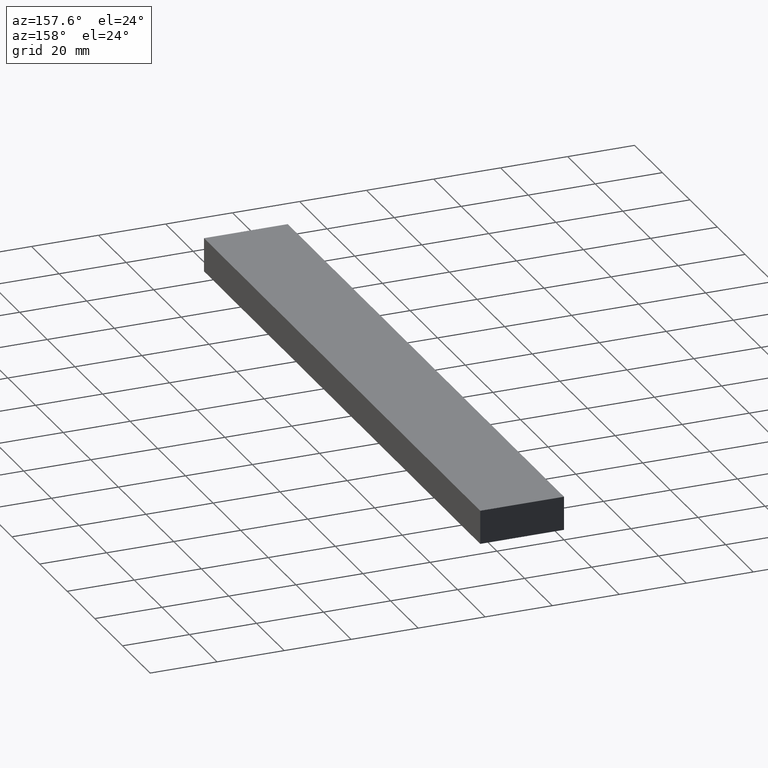
[diagram: clean part render]
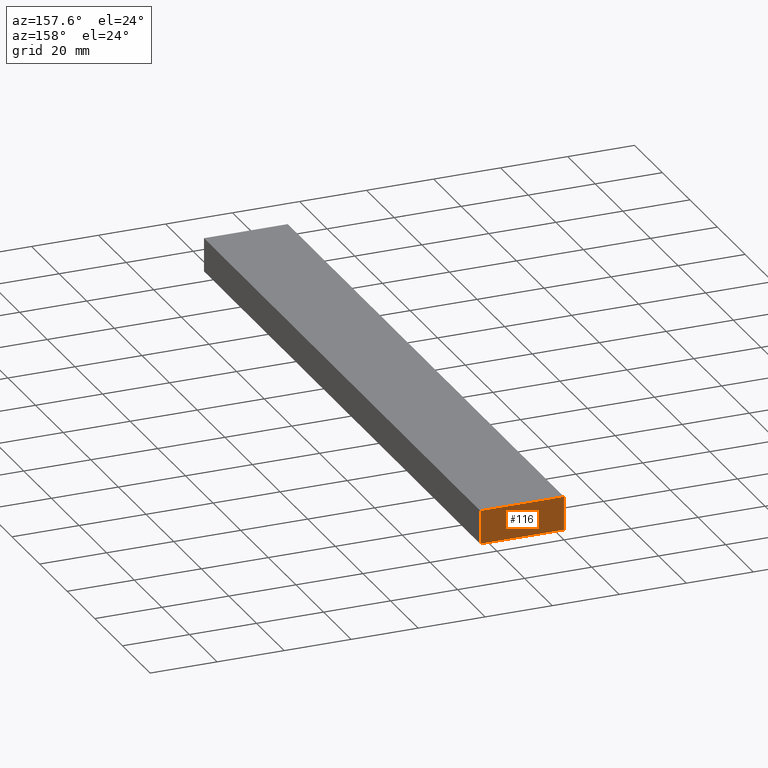
[diagram: same view with one face highlighted and labeled with its STEP entity id]
A machine part, auxiliary view. The second image highlights one B-rep face of the part: STEP entity #116.
In plain terms, the highlighted planar face has unit normal (0, 1, 0).
Its self-contained STEP definition (entity closure, byte-faithful):
#8 = CARTESIAN_POINT ( 'NONE',  ( 0.0000000000000000000, 200.0000000000000000, 0.0000000000000000000 ) ) ;
#9 = EDGE_CURVE ( 'NONE', #238, #62, #41, .T. ) ;
#14 = PLANE ( 'NONE',  #219 ) ;
#16 = EDGE_CURVE ( 'NONE', #167, #98, #101, .T. ) ;
#17 = LINE ( 'NONE', #99, #25 ) ;
#24 = EDGE_LOOP ( 'NONE', ( #231, #80, #118, #150 ) ) ;
#25 = VECTOR ( 'NONE', #189, 1000.000000000000000 ) ;
#29 = DIRECTION ( 'NONE',  ( 1.000000000000000000, 0.0000000000000000000, 0.0000000000000000000 ) ) ;
#41 = LINE ( 'NONE', #188, #209 ) ;
#62 = VERTEX_POINT ( 'NONE', #146 ) ;
#71 = EDGE_CURVE ( 'NONE', #62, #167, #122, .T. ) ;
#74 = DIRECTION ( 'NONE',  ( 0.0000000000000000000, 0.0000000000000000000, -1.000000000000000000 ) ) ;
#80 = ORIENTED_EDGE ( 'NONE', *, *, #16, .T. ) ;
#81 = CARTESIAN_POINT ( 'NONE',  ( 25.00000000000000000, 200.0000000000000000, 10.00000000000000000 ) ) ;
#96 = VECTOR ( 'NONE', #74, 1000.000000000000000 ) ;
#98 = VERTEX_POINT ( 'NONE', #187 ) ;
#99 = CARTESIAN_POINT ( 'NONE',  ( 25.00000000000000000, 200.0000000000000000, 0.0000000000000000000 ) ) ;
#101 = LINE ( 'NONE', #192, #96 ) ;
#116 = ADVANCED_FACE ( 'NONE', ( #164 ), #14, .T. ) ;
#118 = ORIENTED_EDGE ( 'NONE', *, *, #225, .T. ) ;
#122 = LINE ( 'NONE', #206, #163 ) ;
#129 = DIRECTION ( 'NONE',  ( -0.0000000000000000000, 1.000000000000000000, 0.0000000000000000000 ) ) ;
#131 = CARTESIAN_POINT ( 'NONE',  ( 0.0000000000000000000, 200.0000000000000000, 0.0000000000000000000 ) ) ;
#134 = DIRECTION ( 'NONE',  ( 0.0000000000000000000, 0.0000000000000000000, 1.000000000000000000 ) ) ;
#146 = CARTESIAN_POINT ( 'NONE',  ( 0.0000000000000000000, 200.0000000000000000, 10.00000000000000000 ) ) ;
#150 = ORIENTED_EDGE ( 'NONE', *, *, #9, .T. ) ;
#163 = VECTOR ( 'NONE', #29, 1000.000000000000000 ) ;
#164 = FACE_OUTER_BOUND ( 'NONE', #24, .T. ) ;
#167 = VERTEX_POINT ( 'NONE', #81 ) ;
#176 = DIRECTION ( 'NONE',  ( 1.000000000000000000, 0.0000000000000000000, 0.0000000000000000000 ) ) ;
#187 = CARTESIAN_POINT ( 'NONE',  ( 25.00000000000000000, 200.0000000000000000, 0.0000000000000000000 ) ) ;
#188 = CARTESIAN_POINT ( 'NONE',  ( 0.0000000000000000000, 200.0000000000000000, 0.0000000000000000000 ) ) ;
#189 = DIRECTION ( 'NONE',  ( -1.000000000000000000, 0.0000000000000000000, 0.0000000000000000000 ) ) ;
#192 = CARTESIAN_POINT ( 'NONE',  ( 25.00000000000000000, 200.0000000000000000, 10.00000000000000000 ) ) ;
#206 = CARTESIAN_POINT ( 'NONE',  ( 0.0000000000000000000, 200.0000000000000000, 10.00000000000000000 ) ) ;
#209 = VECTOR ( 'NONE', #134, 1000.000000000000000 ) ;
#219 = AXIS2_PLACEMENT_3D ( 'NONE', #131, #129, #176 ) ;
#225 = EDGE_CURVE ( 'NONE', #98, #238, #17, .T. ) ;
#231 = ORIENTED_EDGE ( 'NONE', *, *, #71, .T. ) ;
#238 = VERTEX_POINT ( 'NONE', #8 ) ;